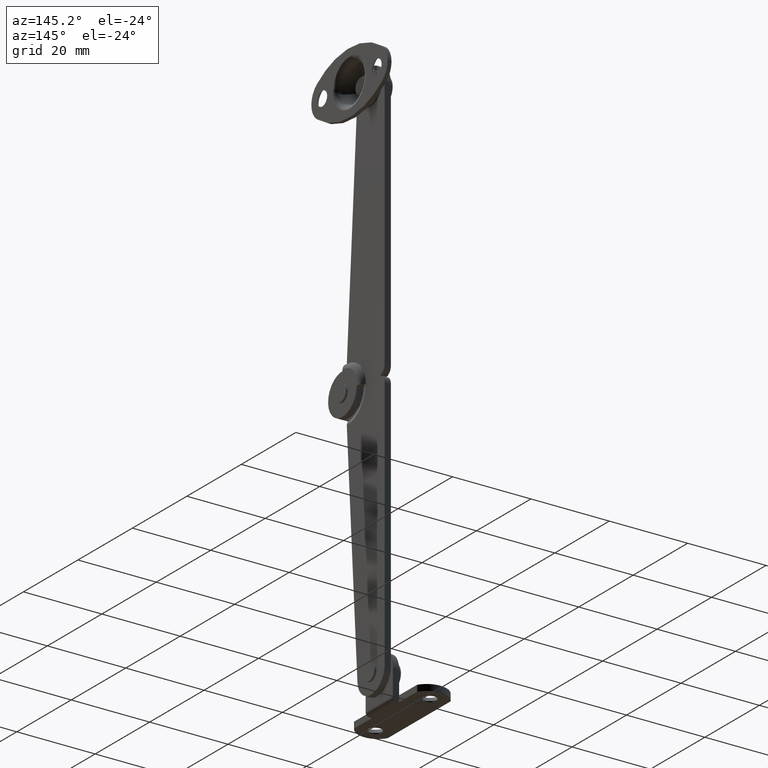
[diagram: clean part render]
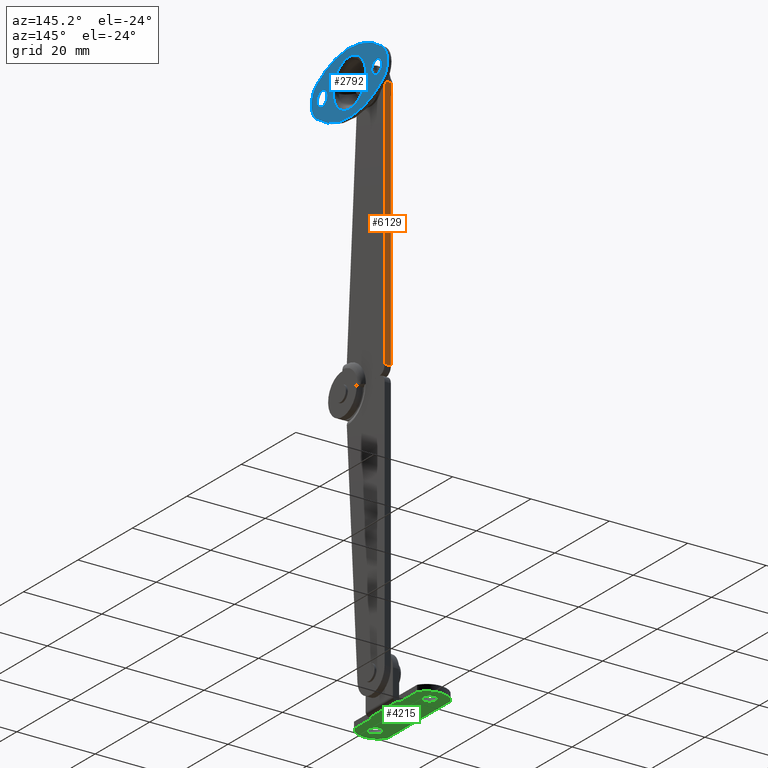
[diagram: same view with three faces highlighted in distinct colors, each labeled with its STEP entity id]
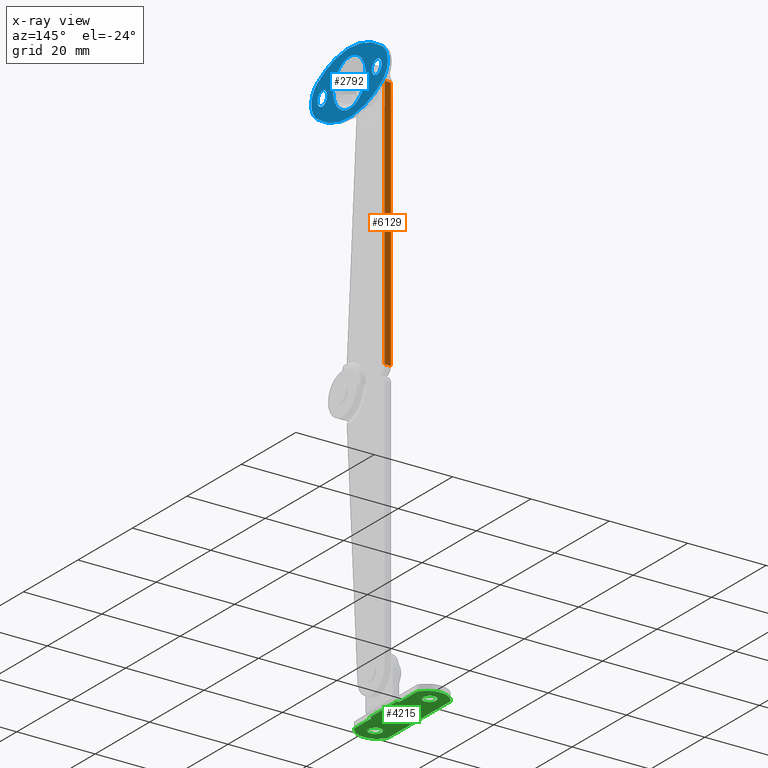
[diagram: x-ray of the same camera — body ghosted, the three highlighted faces saturated]
A machine part, auxiliary view with three faces highlighted in distinct colors.
The next image is the same camera in x-ray (body ghosted, the three faces saturated) — at least one of them is partly hidden behind the body in this view.
Their STEP definitions:

[orange] entity #6129 — the highlighted face is a freeform B-spline surface patch.
#5928=CARTESIAN_POINT('',(4.149994000000055,14.0,2.0));
#5929=VERTEX_POINT('',#5928);
#5941=CARTESIAN_POINT('',(5.750000000000150,14.0,2.0));
#5942=VERTEX_POINT('',#5941);
#5943=CARTESIAN_POINT('',(4.149994000000055,14.0,2.0));
#5944=CARTESIAN_POINT('',(5.750000000000150,14.0,2.0));
#5945=QUASI_UNIFORM_CURVE('',1,(#5943,#5944),.UNSPECIFIED.,.F.,.U.);
#5946=EDGE_CURVE('',#5929,#5942,#5945,.T.);
#6044=CARTESIAN_POINT('',(4.149994000000055,14.0,67.000029999999995));
#6045=VERTEX_POINT('',#6044);
#6046=CARTESIAN_POINT('',(5.750000000000150,14.0,67.000029999999995));
#6047=VERTEX_POINT('',#6046);
#6048=CARTESIAN_POINT('',(4.149994000000055,14.0,67.000029999999995));
#6049=CARTESIAN_POINT('',(5.750000000000150,14.0,67.000029999999995));
#6050=QUASI_UNIFORM_CURVE('',1,(#6048,#6049),.UNSPECIFIED.,.F.,.U.);
#6051=EDGE_CURVE('',#6045,#6047,#6050,.T.);
#6110=CARTESIAN_POINT('',(4.070073583243480,14.0,70.246781982691118));
#6111=CARTESIAN_POINT('',(4.070073583243480,14.0,-1.246753144982219));
#6112=CARTESIAN_POINT('',(5.829920345230884,14.0,70.246781982691118));
#6113=CARTESIAN_POINT('',(5.829920345230884,14.0,-1.246753144982219));
#6114=B_SPLINE_SURFACE_WITH_KNOTS('',1,1,((#6110,#6112),(#6111,#6113)),.UNSPECIFIED.,.F.,.F.,.U.,(2,2),(2,2),(0.0,71.493535127673340),(0.041708272366598,0.958291690380499),.UNSPECIFIED.);
#6115=CARTESIAN_POINT('',(5.750000000000150,14.0,67.000029999999995));
#6116=CARTESIAN_POINT('',(5.750000000000150,14.0,2.0));
#6117=QUASI_UNIFORM_CURVE('',1,(#6115,#6116),.UNSPECIFIED.,.F.,.U.);
#6118=EDGE_CURVE('',#6047,#5942,#6117,.T.);
#6119=ORIENTED_EDGE('',*,*,#6118,.T.);
#6120=ORIENTED_EDGE('',*,*,#5946,.F.);
#6121=CARTESIAN_POINT('',(4.149994000000055,14.0,2.0));
#6122=CARTESIAN_POINT('',(4.149994000000055,14.0,67.000029999999995));
#6123=QUASI_UNIFORM_CURVE('',1,(#6121,#6122),.UNSPECIFIED.,.F.,.U.);
#6124=EDGE_CURVE('',#5929,#6045,#6123,.T.);
#6125=ORIENTED_EDGE('',*,*,#6124,.T.);
#6126=ORIENTED_EDGE('',*,*,#6051,.T.);
#6127=EDGE_LOOP('',(#6119,#6120,#6125,#6126));
#6128=FACE_OUTER_BOUND('',#6127,.T.);
#6129=ADVANCED_FACE('',(#6128),#6114,.F.);

[blue] entity #2792 — the highlighted face is a freeform B-spline surface patch.
#1293=CARTESIAN_POINT('',(9.649994451055704,-2.239037304784775,65.694357113725545));
#1294=VERTEX_POINT('',#1293);
#1300=CARTESIAN_POINT('',(9.649994000000000,-1.0,65.200030000000012));
#1301=VERTEX_POINT('',#1300);
#1302=CARTESIAN_POINT('',(9.649994000000000,-1.0,65.200030000000012));
#1303=CARTESIAN_POINT('',(9.649994093302057,-1.256298084949666,65.199660623900812));
#1304=CARTESIAN_POINT('',(9.649994259002963,-1.711473907100474,65.299080119562205));
#1305=CARTESIAN_POINT('',(9.649994398451641,-2.094535352665974,65.557087586976436));
#1306=CARTESIAN_POINT('',(9.649994451055704,-2.239037304784775,65.694357113725545));
#1307=B_SPLINE_CURVE_WITH_KNOTS('',3,(#1302,#1303,#1304,#1305,#1306),.UNSPECIFIED.,.F.,.U.,(4,1,4),(0.000000084990069,0.768709457459307,1.366624335968727),.UNSPECIFIED.);
#1308=EDGE_CURVE('',#1301,#1294,#1307,.T.);
#1310=CARTESIAN_POINT('',(9.649994000000000,0.799999999996373,67.000026386603949));
#1311=VERTEX_POINT('',#1310);
#1312=CARTESIAN_POINT('',(9.649994000000000,0.799999999996373,67.000026386603949));
#1313=CARTESIAN_POINT('',(9.649994000000001,0.800414382369211,66.734875818377745));
#1314=CARTESIAN_POINT('',(9.649994000000021,0.703883556060165,66.308186642330710));
#1315=CARTESIAN_POINT('',(9.649993999999975,0.403928574066239,65.847343575582656));
#1316=CARTESIAN_POINT('',(9.649993999999998,0.103847748615253,65.561683830306535));
#1317=CARTESIAN_POINT('',(9.649994000000035,-0.337592026286505,65.289459060552844));
#1318=CARTESIAN_POINT('',(9.649993999999969,-0.734848716565953,65.199660955167360));
#1319=CARTESIAN_POINT('',(9.649994000000000,-1.0,65.200030000000012));
#1320=B_SPLINE_CURVE_WITH_KNOTS('',3,(#1312,#1313,#1314,#1315,#1316,#1317,#1318,#1319),.UNSPECIFIED.,.F.,.U.,(4,1,1,1,1,4),(0.000000345596898,0.795239765337936,1.281213680918837,1.634612673123135,2.032262881441498,2.827502303247388),.UNSPECIFIED.);
#1321=EDGE_CURVE('',#1311,#1301,#1320,.T.);
#1323=CARTESIAN_POINT('',(9.649994000000000,-1.0,68.800029999999992));
#1324=VERTEX_POINT('',#1323);
#1325=CARTESIAN_POINT('',(9.649994000000000,-1.0,68.800029999999992));
#1326=CARTESIAN_POINT('',(9.649994000000001,-0.734853882879192,68.800414078628833));
#1327=CARTESIAN_POINT('',(9.649994000000003,-0.249266821802632,68.690723412734101));
#1328=CARTESIAN_POINT('',(9.649994000000021,0.272700384364900,68.313433039890157));
#1329=CARTESIAN_POINT('',(9.649993999999984,0.555403358403742,67.931947877280010));
#1330=CARTESIAN_POINT('',(9.649993999999992,0.746267825684394,67.515360277613993));
#1331=CARTESIAN_POINT('',(9.649994000000087,0.800136375315735,67.206215401993603));
#1332=CARTESIAN_POINT('',(9.649994000000000,0.799999999996373,67.000026386603949));
#1333=B_SPLINE_CURVE_WITH_KNOTS('',3,(#1325,#1326,#1327,#1328,#1329,#1330,#1331,#1332),.UNSPECIFIED.,.F.,.U.,(4,1,1,1,1,4),(0.000000340656648,0.795240907083909,1.457882933283586,1.899716372774283,2.208993927122475,2.827506376488556),.UNSPECIFIED.);
#1334=EDGE_CURVE('',#1324,#1311,#1333,.T.);
#1336=CARTESIAN_POINT('',(9.649993554595177,-2.374401177565089,68.162366531939824));
#1337=VERTEX_POINT('',#1336);
#1338=CARTESIAN_POINT('',(9.649993554595177,-2.374401177565089,68.162366531939824));
#1339=CARTESIAN_POINT('',(9.649993612436207,-2.195919139567455,68.374236489262870));
#1340=CARTESIAN_POINT('',(9.649993751955897,-1.765398291226736,68.692110361589869));
#1341=CARTESIAN_POINT('',(9.649993920795298,-1.244404735133351,68.800331798949657));
#1342=CARTESIAN_POINT('',(9.649994000000000,-1.0,68.800029999999992));
#1343=B_SPLINE_CURVE_WITH_KNOTS('',3,(#1338,#1339,#1340,#1341,#1342),.UNSPECIFIED.,.F.,.U.,(4,1,4),(0.000000100120829,0.830796135116918,1.563891518724855),.UNSPECIFIED.);
#1344=EDGE_CURVE('',#1337,#1324,#1343,.T.);
#1379=CARTESIAN_POINT('',(9.649994000000000,-2.799999999996373,67.000033613396042));
#1380=VERTEX_POINT('',#1379);
#1381=CARTESIAN_POINT('',(9.649994000000000,-2.799999999996373,67.000033613396042));
#1382=CARTESIAN_POINT('',(9.649993914246483,-2.800208916386569,67.223817070721253));
#1383=CARTESIAN_POINT('',(9.649993752910925,-2.720363220080396,67.644839968122554));
#1384=CARTESIAN_POINT('',(9.649993612341973,-2.501992179032066,68.011670075757479));
#1385=CARTESIAN_POINT('',(9.649993554595177,-2.374401177565089,68.162366531939824));
#1386=B_SPLINE_CURVE_WITH_KNOTS('',3,(#1381,#1382,#1383,#1384,#1385),.UNSPECIFIED.,.F.,.U.,(4,1,4),(0.000000057585138,0.671274050167085,1.263612655268978),.UNSPECIFIED.);
#1387=EDGE_CURVE('',#1380,#1337,#1386,.T.);
#1389=CARTESIAN_POINT('',(9.649994451055704,-2.239037304784775,65.694357113725545));
#1390=CARTESIAN_POINT('',(9.649994396815503,-2.404758980099174,65.851367108114886));
#1391=CARTESIAN_POINT('',(9.649994257486902,-2.693087091308471,66.254683529306249));
#1392=CARTESIAN_POINT('',(9.649994089383382,-2.800373724412756,66.741294678245737));
#1393=CARTESIAN_POINT('',(9.649994000000000,-2.799999999996373,67.000033613396042));
#1394=B_SPLINE_CURVE_WITH_KNOTS('',3,(#1389,#1390,#1391,#1392,#1393),.UNSPECIFIED.,.F.,.U.,(4,1,4),(0.000000093078736,0.684812541278884,1.460882790438908),.UNSPECIFIED.);
#1395=EDGE_CURVE('',#1294,#1380,#1394,.T.);
#1485=CARTESIAN_POINT('',(9.649994451055704,17.760962695215230,65.694357113725545));
#1486=VERTEX_POINT('',#1485);
#1492=CARTESIAN_POINT('',(9.649994000000000,19.0,65.200030000000012));
#1493=VERTEX_POINT('',#1492);
#1494=CARTESIAN_POINT('',(9.649994000000000,19.0,65.200030000000012));
#1495=CARTESIAN_POINT('',(9.649994077743370,18.786441163693379,65.199865926290471));
#1496=CARTESIAN_POINT('',(9.649994243528212,18.331034854426299,65.282081073363784));
#1497=CARTESIAN_POINT('',(9.649994387210603,17.936343377775600,65.527558268005578));
#1498=CARTESIAN_POINT('',(9.649994451055704,17.760962695215230,65.694357113725545));
#1499=B_SPLINE_CURVE_WITH_KNOTS('',3,(#1494,#1495,#1496,#1497,#1498),.UNSPECIFIED.,.F.,.U.,(4,1,4),(0.000000084988176,0.640630727484481,1.366624335968762),.UNSPECIFIED.);
#1500=EDGE_CURVE('',#1493,#1486,#1499,.T.);
#1502=CARTESIAN_POINT('',(9.649994000000000,20.799999999996380,67.000026386603949));
#1503=VERTEX_POINT('',#1502);
#1504=CARTESIAN_POINT('',(9.649994000000000,20.799999999996380,67.000026386603949));
#1505=CARTESIAN_POINT('',(9.649993999999971,20.800401698574909,66.734890090380446));
#1506=CARTESIAN_POINT('',(9.649994000000056,20.697253330268321,66.278711407232024));
#1507=CARTESIAN_POINT('',(9.649993999999987,20.309117846460850,65.712956178023902));
#1508=CARTESIAN_POINT('',(9.649993999999957,19.750735939879629,65.309326788825501));
#1509=CARTESIAN_POINT('',(9.649994000000019,19.265144538212660,65.199646620830421));
#1510=CARTESIAN_POINT('',(9.649994000000000,19.0,65.200030000000012));
#1511=B_SPLINE_CURVE_WITH_KNOTS('',3,(#1504,#1505,#1506,#1507,#1508,#1509,#1510),.UNSPECIFIED.,.F.,.U.,(4,1,1,1,4),(0.000000345598685,0.795239765339662,1.369621816668202,2.032262881441540,2.827502303247411),.UNSPECIFIED.);
#1512=EDGE_CURVE('',#1503,#1493,#1511,.T.);
#1514=CARTESIAN_POINT('',(9.649994000000000,19.0,68.800029999999992));
#1515=VERTEX_POINT('',#1514);
#1516=CARTESIAN_POINT('',(9.649994000000000,19.0,68.800029999999992));
#1517=CARTESIAN_POINT('',(9.649994000000008,19.176702584370389,68.800063348140696));
#1518=CARTESIAN_POINT('',(9.649993999999978,19.574372426753769,68.741145547526799));
#1519=CARTESIAN_POINT('',(9.649994000000044,20.039623481263622,68.499757766064988));
#1520=CARTESIAN_POINT('',(9.649993999999991,20.382430089339501,68.173078120545583));
#1521=CARTESIAN_POINT('',(9.649993999999948,20.692882103396300,67.721161177934235));
#1522=CARTESIAN_POINT('',(9.649994000000074,20.800554131045391,67.294682843714853));
#1523=CARTESIAN_POINT('',(9.649994000000000,20.799999999996380,67.000026386603949));
#1524=B_SPLINE_CURVE_WITH_KNOTS('',3,(#1516,#1517,#1518,#1519,#1520,#1521,#1522,#1523),.UNSPECIFIED.,.F.,.U.,(4,1,1,1,1,4),(0.000000340657242,0.530151574952296,1.192891687106941,1.546291194766596,1.943904592462794,2.827506376488596),.UNSPECIFIED.);
#1525=EDGE_CURVE('',#1515,#1503,#1524,.T.);
#1527=CARTESIAN_POINT('',(9.649993554595177,17.625598822434910,68.162366531939810));
#1528=VERTEX_POINT('',#1527);
#1529=CARTESIAN_POINT('',(9.649993554595177,17.625598822434910,68.162366531939810));
#1530=CARTESIAN_POINT('',(9.649993605679878,17.783232693879071,68.349128830947876));
#1531=CARTESIAN_POINT('',(9.649993741449968,18.202183132001469,68.677188511200569));
#1532=CARTESIAN_POINT('',(9.649993910232753,18.723002080501630,68.800510863590148));
#1533=CARTESIAN_POINT('',(9.649994000000000,19.0,68.800029999999992));
#1534=B_SPLINE_CURVE_WITH_KNOTS('',3,(#1529,#1530,#1531,#1532,#1533),.UNSPECIFIED.,.F.,.U.,(4,1,4),(0.000000100121450,0.733095483797581,1.563891518724863),.UNSPECIFIED.);
#1535=EDGE_CURVE('',#1528,#1515,#1534,.T.);
#1570=CARTESIAN_POINT('',(9.649994000000000,17.200000000003630,67.000033613396042));
#1571=VERTEX_POINT('',#1570);
#1572=CARTESIAN_POINT('',(9.649994000000000,17.200000000003630,67.000033613396042));
#1573=CARTESIAN_POINT('',(9.649993924334217,17.199874407678081,67.197491944065362));
#1574=CARTESIAN_POINT('',(9.649993762970118,17.270054076239781,67.618589454449875));
#1575=CARTESIAN_POINT('',(9.649993620018332,17.480916593404501,67.991637789154623));
#1576=CARTESIAN_POINT('',(9.649993554595177,17.625598822434910,68.162366531939810));
#1577=B_SPLINE_CURVE_WITH_KNOTS('',3,(#1572,#1573,#1574,#1575,#1576),.UNSPECIFIED.,.F.,.U.,(4,1,4),(0.000000057587238,0.592338662387954,1.263612655268946),.UNSPECIFIED.);
#1578=EDGE_CURVE('',#1571,#1528,#1577,.T.);
#1580=CARTESIAN_POINT('',(9.649994451055704,17.760962695215230,65.694357113725545));
#1581=CARTESIAN_POINT('',(9.649994396821738,17.595215313404729,65.851349073716094));
#1582=CARTESIAN_POINT('',(9.649994257477070,17.306956610303541,66.254711894712671));
#1583=CARTESIAN_POINT('',(9.649994089386851,17.199609116564311,66.741284677093475));
#1584=CARTESIAN_POINT('',(9.649994000000000,17.200000000003630,67.000033613396042));
#1585=B_SPLINE_CURVE_WITH_KNOTS('',3,(#1580,#1581,#1582,#1583,#1584),.UNSPECIFIED.,.F.,.U.,(4,1,4),(0.000000093078407,0.684812541279019,1.460882790438911),.UNSPECIFIED.);
#1586=EDGE_CURVE('',#1486,#1571,#1585,.T.);
#1861=CARTESIAN_POINT('',(9.649994000000108,3.136375976985022,68.272075974731393));
#1862=VERTEX_POINT('',#1861);
#1872=CARTESIAN_POINT('',(9.649994000000110,9.0,61.000014362757327));
#1873=VERTEX_POINT('',#1872);
#1874=CARTESIAN_POINT('',(9.649994000000110,9.0,61.000014362757327));
#1875=CARTESIAN_POINT('',(9.649994000000101,8.609666033851966,60.999963915993057));
#1876=CARTESIAN_POINT('',(9.649994000000129,7.856898252964660,61.073774177375050));
#1877=CARTESIAN_POINT('',(9.649994000000104,6.567431565047627,61.452338306088663));
#1878=CARTESIAN_POINT('',(9.649994000000108,5.322233093092903,62.170007067396547));
#1879=CARTESIAN_POINT('',(9.649994000000113,4.193099609499307,63.304278319418842));
#1880=CARTESIAN_POINT('',(9.649994000000108,3.422323229111600,64.613065093003883));
#1881=CARTESIAN_POINT('',(9.649994000000111,2.942748407027567,66.317350125228558));
#1882=CARTESIAN_POINT('',(9.649994000000110,2.982083396451556,67.563674280196381));
#1883=CARTESIAN_POINT('',(9.649994000000108,3.136375976985022,68.272075974731393));
#1884=B_SPLINE_CURVE_WITH_KNOTS('',3,(#1874,#1875,#1876,#1877,#1878,#1879,#1880,#1881,#1882,#1883),.UNSPECIFIED.,.F.,.U.,(4,1,1,1,1,1,1,4),(0.000000245089083,1.171003277671836,2.258433945535783,4.015008304481801,5.436919954071710,7.026219321892260,8.531885843549242,10.706662360019990),.UNSPECIFIED.);
#1885=EDGE_CURVE('',#1873,#1862,#1884,.T.);
#1887=CARTESIAN_POINT('',(9.649994000000078,10.605318162429359,72.781305234925838));
#1888=VERTEX_POINT('',#1887);
#1889=CARTESIAN_POINT('',(9.649994000000078,10.605318162429359,72.781305234925838));
#1890=CARTESIAN_POINT('',(9.649994000000099,11.297072524835979,72.589857098183799));
#1891=CARTESIAN_POINT('',(9.649994000000033,12.404534030480621,72.053329611328280));
#1892=CARTESIAN_POINT('',(9.649994000000142,13.740224080991879,70.801527004857590));
#1893=CARTESIAN_POINT('',(9.649994000000074,14.490451513684160,69.558518277163913));
#1894=CARTESIAN_POINT('',(9.649994000000012,14.898994442244970,68.271271829619664));
#1895=CARTESIAN_POINT('',(9.649994000000213,15.022951284448970,67.264491122230339));
#1896=CARTESIAN_POINT('',(9.649994000000028,14.971595550254380,66.141762733299814));
#1897=CARTESIAN_POINT('',(9.649994000000119,14.739844692042020,65.129847874858314));
#1898=CARTESIAN_POINT('',(9.649994000000156,14.194786545442430,63.894914783609487));
#1899=CARTESIAN_POINT('',(9.649993999999991,13.409637977638271,62.840491053810709));
#1900=CARTESIAN_POINT('',(9.649994000000335,12.343742662872311,61.971636481981797));
#1901=CARTESIAN_POINT('',(9.649993999999762,11.368527354530629,61.454234392848022));
#1902=CARTESIAN_POINT('',(9.649994000000577,10.255872515071591,61.092953747844589));
#1903=CARTESIAN_POINT('',(9.649993999999692,9.470974073598475,60.999896110533193));
#1904=CARTESIAN_POINT('',(9.649994000000110,9.0,61.000014362757327));
#1905=B_SPLINE_CURVE_WITH_KNOTS('',3,(#1889,#1890,#1891,#1892,#1893,#1894,#1895,#1896,#1897,#1898,#1899,#1900,#1901,#1902,#1903,#1904),.UNSPECIFIED.,.F.,.U.,(4,1,1,1,1,1,1,1,1,1,1,1,1,4),(0.000000489455335,2.153018411291860,3.633302781003689,5.450000731887766,6.459273881331582,7.670387090471490,8.477787418457710,9.823318680504482,10.765346778150310,12.514734577114130,13.725859515860041,14.869681849598351,15.811691561109109,17.224580087048199),.UNSPECIFIED.);
#1906=EDGE_CURVE('',#1888,#1873,#1905,.T.);
#1954=CARTESIAN_POINT('',(9.649994000000110,9.0,73.000045637242678));
#1955=VERTEX_POINT('',#1954);
#1956=CARTESIAN_POINT('',(9.649994000000110,9.0,73.000045637242678));
#1957=CARTESIAN_POINT('',(9.649994000000122,9.541714192960235,73.000137048333485));
#1958=CARTESIAN_POINT('',(9.649994000000103,10.083382077342559,72.926370396784577));
#1959=CARTESIAN_POINT('',(9.649994000000078,10.605318162429359,72.781305234925838));
#1960=B_SPLINE_CURVE_WITH_KNOTS('',3,(#1956,#1957,#1958,#1959),.UNSPECIFIED.,.F.,.U.,(4,4),(5.034593E-009,1.625134716293329),.UNSPECIFIED.);
#1961=EDGE_CURVE('',#1955,#1888,#1960,.T.);
#1963=CARTESIAN_POINT('',(9.649994000000108,3.136375976985022,68.272075974731393));
#1964=CARTESIAN_POINT('',(9.649994000000094,3.266451172408891,68.873174695616768));
#1965=CARTESIAN_POINT('',(9.649994000000124,3.621430631441156,69.794121433911656));
#1966=CARTESIAN_POINT('',(9.649994000000117,4.354684378896154,70.840286673246354));
#1967=CARTESIAN_POINT('',(9.649994000000119,5.143679458517179,71.645052012502973));
#1968=CARTESIAN_POINT('',(9.649994000000113,6.109929943415776,72.312304162901938));
#1969=CARTESIAN_POINT('',(9.649994000000104,7.452091081945932,72.859298907696115));
#1970=CARTESIAN_POINT('',(9.649994000000140,8.427415972008365,73.000274947265382));
#1971=CARTESIAN_POINT('',(9.649994000000110,9.0,73.000045637242678));
#1972=B_SPLINE_CURVE_WITH_KNOTS('',3,(#1963,#1964,#1965,#1966,#1967,#1968,#1969,#1970,#1971),.UNSPECIFIED.,.F.,.U.,(4,1,1,1,1,1,4),(0.000000123786517,1.844911224844770,2.926437859339236,3.817080720363979,5.216631494164000,6.425391302564513,8.143067522420745),.UNSPECIFIED.);
#1973=EDGE_CURVE('',#1862,#1955,#1972,.T.);
#2521=CARTESIAN_POINT('',(9.649994000000110,21.000004105534899,71.000018170845408));
#2522=VERTEX_POINT('',#2521);
#2523=CARTESIAN_POINT('',(9.649994000000110,-3.000003686655965,71.000018485002698));
#2524=VERTEX_POINT('',#2523);
#2525=CARTESIAN_POINT('',(9.649994000000110,21.000004105534899,71.000018170845408));
#2526=CARTESIAN_POINT('',(9.649994000000101,19.606001622478381,72.046139898922689));
#2527=CARTESIAN_POINT('',(9.649994000000135,17.308211481104710,73.338970790858212));
#2528=CARTESIAN_POINT('',(9.649994000000080,13.797254136939729,74.489477680095646));
#2529=CARTESIAN_POINT('',(9.649994000000120,10.417590043490030,75.073106162316336));
#2530=CARTESIAN_POINT('',(9.649994000000126,6.776470699495208,74.999944141021970));
#2531=CARTESIAN_POINT('',(9.649994000000083,3.488747073172148,74.294923879892082));
#2532=CARTESIAN_POINT('',(9.649994000000152,0.273770950415316,73.114453987845877));
#2533=CARTESIAN_POINT('',(9.649994000000051,-1.766816290358881,71.925368963532108));
#2534=CARTESIAN_POINT('',(9.649994000000110,-3.000003686655965,71.000018485002698));
#2535=B_SPLINE_CURVE_WITH_KNOTS('',3,(#2525,#2526,#2527,#2528,#2529,#2530,#2531,#2532,#2533,#2534),.UNSPECIFIED.,.F.,.U.,(4,1,1,1,1,1,1,4),(0.000000048449976,5.228463803631286,7.842709766473440,11.060233049703699,15.484287527659500,18.701835276592451,21.114989854946430,25.740166943320830),.UNSPECIFIED.);
#2536=EDGE_CURVE('',#2522,#2524,#2535,.T.);
#2582=CARTESIAN_POINT('',(9.649994000000110,21.000000295162049,63.000032721371902));
#2583=VERTEX_POINT('',#2582);
#2584=CARTESIAN_POINT('',(9.649994000000110,21.000000295162049,63.000032721371902));
#2585=CARTESIAN_POINT('',(9.649994000000092,21.251154371928251,63.188357881167718));
#2586=CARTESIAN_POINT('',(9.649994000000177,21.735772994078982,63.628852382171132));
#2587=CARTESIAN_POINT('',(9.649994000000023,22.270331946299990,64.350520155255978));
#2588=CARTESIAN_POINT('',(9.649994000000152,22.703483984053459,65.216780217272444));
#2589=CARTESIAN_POINT('',(9.649994000000115,22.941376703953871,66.059013162151430));
#2590=CARTESIAN_POINT('',(9.649994000000062,23.025423516828180,67.023830247763797));
#2591=CARTESIAN_POINT('',(9.649994000000223,22.943270519853080,67.966871295907879));
#2592=CARTESIAN_POINT('',(9.649993999999929,22.595018730077811,69.105092560633182));
#2593=CARTESIAN_POINT('',(9.649994000000230,21.943935458053559,70.165701571552589));
#2594=CARTESIAN_POINT('',(9.649994000000101,21.309104586485351,70.768234190709236));
#2595=CARTESIAN_POINT('',(9.649994000000110,21.000004105534899,71.000018170845408));
#2596=B_SPLINE_CURVE_WITH_KNOTS('',3,(#2584,#2585,#2586,#2587,#2588,#2589,#2590,#2591,#2592,#2593,#2594,#2595),.UNSPECIFIED.,.F.,.U.,(4,1,1,1,1,1,1,1,1,4),(0.000000283874277,0.941756870447453,1.956019835069806,2.680493443352812,3.839642157791069,4.564122549599736,5.578253375811129,6.664978479389026,8.113924067409426,9.273014752692442),.UNSPECIFIED.);
#2597=EDGE_CURVE('',#2583,#2522,#2596,.T.);
#2639=CARTESIAN_POINT('',(9.649994000000110,-3.000000015909705,63.000032511932403));
#2640=VERTEX_POINT('',#2639);
#2641=CARTESIAN_POINT('',(9.649994000000110,-3.000000015909705,63.000032511932403));
#2642=CARTESIAN_POINT('',(9.649994000000092,-1.605997751023824,61.953897591322423));
#2643=CARTESIAN_POINT('',(9.649994000000152,0.691800802045827,60.661138051571342));
#2644=CARTESIAN_POINT('',(9.649994000000058,4.458080552774334,59.426777289652222));
#2645=CARTESIAN_POINT('',(9.649994000000168,7.721724107517023,58.930694067893683));
#2646=CARTESIAN_POINT('',(9.649994000000095,11.082639255447409,59.032288215943893));
#2647=CARTESIAN_POINT('',(9.649994000000127,13.991012173575500,59.564494798660597));
#2648=CARTESIAN_POINT('',(9.649994000000097,17.369813477313471,60.690608280784318));
#2649=CARTESIAN_POINT('',(9.649994000000104,19.659603674296111,61.994164961118770));
#2650=CARTESIAN_POINT('',(9.649994000000110,21.000000295162049,63.000032721371902));
#2651=B_SPLINE_CURVE_WITH_KNOTS('',3,(#2641,#2642,#2643,#2644,#2645,#2646,#2647,#2648,#2649,#2650),.UNSPECIFIED.,.F.,.U.,(4,1,1,1,1,1,1,4),(0.000000048470827,5.228461091149526,7.842705697700037,11.864645613613570,15.082092491760569,17.897447020660032,20.712783386384249,25.740153589354961),.UNSPECIFIED.);
#2652=EDGE_CURVE('',#2640,#2583,#2651,.T.);
#2692=CARTESIAN_POINT('',(9.649994000000110,-3.000003686655965,71.000018485002698));
#2693=CARTESIAN_POINT('',(9.649994000000110,-3.270483891115501,70.797204984290957));
#2694=CARTESIAN_POINT('',(9.649994000000103,-3.787938948504215,70.319991943571111));
#2695=CARTESIAN_POINT('',(9.649994000000126,-4.377221507229255,69.487155831588737));
#2696=CARTESIAN_POINT('',(9.649994000000092,-4.805500277867499,68.509601035787156));
#2697=CARTESIAN_POINT('',(9.649994000000129,-5.045670775958975,67.342795342147653));
#2698=CARTESIAN_POINT('',(9.649994000000051,-4.980614782306598,66.222206106802787));
#2699=CARTESIAN_POINT('',(9.649994000000103,-4.684295033635258,65.173723576772019));
#2700=CARTESIAN_POINT('',(9.649994000000241,-4.149226587475864,64.083325777954272));
#2701=CARTESIAN_POINT('',(9.649993999999909,-3.483290317067980,63.361933687501129));
#2702=CARTESIAN_POINT('',(9.649994000000110,-3.000000015909705,63.000032511932403));
#2703=B_SPLINE_CURVE_WITH_KNOTS('',3,(#2692,#2693,#2694,#2695,#2696,#2697,#2698,#2699,#2700,#2701,#2702),.UNSPECIFIED.,.F.,.U.,(4,1,1,1,1,1,1,1,4),(0.000000283928129,1.014223614566017,2.100911204105307,3.042727969645987,4.201842481066900,5.650726894339682,6.375178836503205,7.461885251918522,9.273015369800733),.UNSPECIFIED.);
#2704=EDGE_CURVE('',#2524,#2640,#2703,.T.);
#2759=CARTESIAN_POINT('',(9.649994000000110,-6.398537637158274,75.799103255915028));
#2760=CARTESIAN_POINT('',(9.649994000000110,24.398603185556169,75.799103255915028));
#2761=CARTESIAN_POINT('',(9.649994000000110,-6.398537637158274,58.200816145868593));
#2762=CARTESIAN_POINT('',(9.649994000000110,24.398603185556169,58.200816145868593));
#2763=B_SPLINE_SURFACE_WITH_KNOTS('',1,1,((#2759,#2761),(#2760,#2762)),.UNSPECIFIED.,.F.,.F.,.U.,(2,2),(2,2),(0.0,30.797140822714439),(0.0,17.598287110046439),.UNSPECIFIED.);
#2764=ORIENTED_EDGE('',*,*,#2704,.T.);
#2765=ORIENTED_EDGE('',*,*,#2652,.T.);
#2766=ORIENTED_EDGE('',*,*,#2597,.T.);
#2767=ORIENTED_EDGE('',*,*,#2536,.T.);
#2768=EDGE_LOOP('',(#2764,#2765,#2766,#2767));
#2769=FACE_OUTER_BOUND('',#2768,.T.);
#2770=ORIENTED_EDGE('',*,*,#1885,.T.);
#2771=ORIENTED_EDGE('',*,*,#1973,.T.);
#2772=ORIENTED_EDGE('',*,*,#1961,.T.);
#2773=ORIENTED_EDGE('',*,*,#1906,.T.);
#2774=EDGE_LOOP('',(#2770,#2771,#2772,#2773));
#2775=FACE_BOUND('',#2774,.T.);
#2776=ORIENTED_EDGE('',*,*,#1525,.T.);
#2777=ORIENTED_EDGE('',*,*,#1512,.T.);
#2778=ORIENTED_EDGE('',*,*,#1500,.T.);
#2779=ORIENTED_EDGE('',*,*,#1586,.T.);
#2780=ORIENTED_EDGE('',*,*,#1578,.T.);
#2781=ORIENTED_EDGE('',*,*,#1535,.T.);
#2782=EDGE_LOOP('',(#2776,#2777,#2778,#2779,#2780,#2781));
#2783=FACE_BOUND('',#2782,.T.);
#2784=ORIENTED_EDGE('',*,*,#1334,.T.);
#2785=ORIENTED_EDGE('',*,*,#1321,.T.);
#2786=ORIENTED_EDGE('',*,*,#1308,.T.);
#2787=ORIENTED_EDGE('',*,*,#1395,.T.);
#2788=ORIENTED_EDGE('',*,*,#1387,.T.);
#2789=ORIENTED_EDGE('',*,*,#1344,.T.);
#2790=EDGE_LOOP('',(#2784,#2785,#2786,#2787,#2788,#2789));
#2791=FACE_BOUND('',#2790,.T.);
#2792=ADVANCED_FACE('',(#2769,#2775,#2783,#2791),#2763,.F.);

[green] entity #4215 — the highlighted face is a freeform B-spline surface patch.
#3068=CARTESIAN_POINT('',(-4.915481147613297,-2.259867392666124,-74.599976999999910));
#3069=VERTEX_POINT('',#3068);
#3075=CARTESIAN_POINT('',(-5.500005999999895,-1.0,-74.599976999999896));
#3076=VERTEX_POINT('',#3075);
#3077=CARTESIAN_POINT('',(-4.915481147613297,-2.259867392666124,-74.599976999999910));
#3078=CARTESIAN_POINT('',(-5.086726821433127,-2.115407090062379,-74.599976999999896));
#3079=CARTESIAN_POINT('',(-5.387339755077012,-1.731273406151336,-74.599977000000095));
#3080=CARTESIAN_POINT('',(-5.500461870928144,-1.253933618283417,-74.599976999999882));
#3081=CARTESIAN_POINT('',(-5.500005999999895,-1.0,-74.599976999999896));
#3082=B_SPLINE_CURVE_WITH_KNOTS('',3,(#3077,#3078,#3079,#3080,#3081),.UNSPECIFIED.,.F.,.U.,(4,1,4),(0.000000119611054,0.672011127664677,1.433566883238983),.UNSPECIFIED.);
#3083=EDGE_CURVE('',#3069,#3076,#3082,.T.);
#3085=CARTESIAN_POINT('',(-3.850002143701895,0.649999999995494,-74.599976999999896));
#3086=VERTEX_POINT('',#3085);
#3087=CARTESIAN_POINT('',(-5.500005999999895,-1.0,-74.599976999999896));
#3088=CARTESIAN_POINT('',(-5.500096540010426,-0.824504927495290,-74.599976999999939));
#3089=CARTESIAN_POINT('',(-5.452161073842555,-0.527583691038509,-74.599976999999669));
#3090=CARTESIAN_POINT('',(-5.254222427032292,-0.095388290935794,-74.599977000000081));
#3091=CARTESIAN_POINT('',(-4.937450646521857,0.281317266079958,-74.599977000000152));
#3092=CARTESIAN_POINT('',(-4.443850746729992,0.577012924310874,-74.599976999999143));
#3093=CARTESIAN_POINT('',(-4.052512222684595,0.650172319968812,-74.599977000000024));
#3094=CARTESIAN_POINT('',(-3.850002143701895,0.649999999995494,-74.599976999999896));
#3095=B_SPLINE_CURVE_WITH_KNOTS('',3,(#3087,#3088,#3089,#3090,#3091,#3092,#3093,#3094),.UNSPECIFIED.,.F.,.U.,(4,1,1,1,1,4),(0.000000356279306,0.526470657193582,0.890978668959229,1.417418142825531,1.984412466626986,2.591881151729964),.UNSPECIFIED.);
#3096=EDGE_CURVE('',#3076,#3086,#3095,.T.);
#3098=CARTESIAN_POINT('',(-2.200005999999895,-1.0,-74.599976999999896));
#3099=VERTEX_POINT('',#3098);
#3100=CARTESIAN_POINT('',(-3.850002143701895,0.649999999995494,-74.599976999999896));
#3101=CARTESIAN_POINT('',(-3.647506225172289,0.650153909620931,-74.599976999999868));
#3102=CARTESIAN_POINT('',(-3.229076924057162,0.572073048526528,-74.599976999999811));
#3103=CARTESIAN_POINT('',(-2.729152598483500,0.255581733195900,-74.599977000000280));
#3104=CARTESIAN_POINT('',(-2.427070454633534,-0.131884276773977,-74.599976999999299));
#3105=CARTESIAN_POINT('',(-2.245674619891713,-0.541089522906816,-74.599977000000905));
#3106=CARTESIAN_POINT('',(-2.199912938172373,-0.824501399452546,-74.599976999998930));
#3107=CARTESIAN_POINT('',(-2.200005999999895,-1.0,-74.599976999999896));
#3108=B_SPLINE_CURVE_WITH_KNOTS('',3,(#3100,#3101,#3102,#3103,#3104,#3105,#3106,#3107),.UNSPECIFIED.,.F.,.U.,(4,1,1,1,1,4),(0.000000361543147,0.607468029780056,1.255493459995875,1.741410047913638,2.065407385826035,2.591876804674869),.UNSPECIFIED.);
#3109=EDGE_CURVE('',#3086,#3099,#3108,.T.);
#3111=CARTESIAN_POINT('',(-2.653138784126899,-2.135784174252351,-74.599976999999910));
#3112=VERTEX_POINT('',#3111);
#3113=CARTESIAN_POINT('',(-2.200005999999895,-1.0,-74.599976999999896));
#3114=CARTESIAN_POINT('',(-2.199919895198673,-1.182695392794943,-74.599976999999953));
#3115=CARTESIAN_POINT('',(-2.270037159685963,-1.600219130544500,-74.599976999999939));
#3116=CARTESIAN_POINT('',(-2.491194639171962,-1.965585559665340,-74.599976999999910));
#3117=CARTESIAN_POINT('',(-2.653138784126899,-2.135784174252351,-74.599976999999910));
#3118=B_SPLINE_CURVE_WITH_KNOTS('',3,(#3113,#3114,#3115,#3116,#3117),.UNSPECIFIED.,.F.,.U.,(4,1,4),(0.000000077919313,0.548088634569418,1.252738786484338),.UNSPECIFIED.);
#3119=EDGE_CURVE('',#3099,#3112,#3118,.T.);
#3151=CARTESIAN_POINT('',(-3.850009856297910,-2.649999999995494,-74.599976999999910));
#3152=VERTEX_POINT('',#3151);
#3153=CARTESIAN_POINT('',(-2.653138784126899,-2.135784174252351,-74.599976999999910));
#3154=CARTESIAN_POINT('',(-2.749137825691201,-2.236984432719616,-74.599976999999910));
#3155=CARTESIAN_POINT('',(-2.988766522265876,-2.432659665602473,-74.599976999999967));
#3156=CARTESIAN_POINT('',(-3.403628061533141,-2.610917947765740,-74.599976999999924));
#3157=CARTESIAN_POINT('',(-3.710521699529648,-2.650020887142067,-74.599976999999853));
#3158=CARTESIAN_POINT('',(-3.850009856297910,-2.649999999995494,-74.599976999999910));
#3159=B_SPLINE_CURVE_WITH_KNOTS('',3,(#3153,#3154,#3155,#3156,#3157,#3158),.UNSPECIFIED.,.F.,.U.,(4,1,1,4),(0.000000085321552,0.418486140712205,0.920658545406394,1.339143508192321),.UNSPECIFIED.);
#3160=EDGE_CURVE('',#3112,#3152,#3159,.T.);
#3162=CARTESIAN_POINT('',(-3.850009856297910,-2.649999999995494,-74.599976999999910));
#3163=CARTESIAN_POINT('',(-4.091398543411231,-2.650396586462149,-74.599976999999924));
#3164=CARTESIAN_POINT('',(-4.477121408272358,-2.563674139399346,-74.599976999999939));
#3165=CARTESIAN_POINT('',(-4.804946833105610,-2.353384385186920,-74.599976999999953));
#3166=CARTESIAN_POINT('',(-4.915481147613297,-2.259867392666124,-74.599976999999910));
#3167=B_SPLINE_CURVE_WITH_KNOTS('',3,(#3162,#3163,#3164,#3165,#3166),.UNSPECIFIED.,.F.,.U.,(4,1,4),(0.000000066437543,0.723934781667624,1.158311183531885),.UNSPECIFIED.);
#3168=EDGE_CURVE('',#3152,#3069,#3167,.T.);
#3212=CARTESIAN_POINT('',(-4.915481147613297,17.740132607333880,-74.599976999999910));
#3213=VERTEX_POINT('',#3212);
#3219=CARTESIAN_POINT('',(-5.500005999999895,19.0,-74.599976999999896));
#3220=VERTEX_POINT('',#3219);
#3221=CARTESIAN_POINT('',(-4.915481147613297,17.740132607333880,-74.599976999999910));
#3222=CARTESIAN_POINT('',(-5.063817134551580,17.865391366522370,-74.599976999999967));
#3223=CARTESIAN_POINT('',(-5.266902371851568,18.110685531786011,-74.599976999999896));
#3224=CARTESIAN_POINT('',(-5.457271108645903,18.552060619334981,-74.599976999999910));
#3225=CARTESIAN_POINT('',(-5.500080882632612,18.835731019303680,-74.599976999999910));
#3226=CARTESIAN_POINT('',(-5.500005999999895,19.0,-74.599976999999896));
#3227=B_SPLINE_CURVE_WITH_KNOTS('',3,(#3221,#3222,#3223,#3224,#3225,#3226),.UNSPECIFIED.,.F.,.U.,(4,1,1,4),(0.000000119611083,0.582391951691505,0.940765481704321,1.433566883238986),.UNSPECIFIED.);
#3228=EDGE_CURVE('',#3213,#3220,#3227,.T.);
#3230=CARTESIAN_POINT('',(-3.850002143701895,20.649999999995490,-74.599976999999896));
#3231=VERTEX_POINT('',#3230);
#3232=CARTESIAN_POINT('',(-5.500005999999895,19.0,-74.599976999999896));
#3233=CARTESIAN_POINT('',(-5.500284200583609,19.229523844579219,-74.599976999999996));
#3234=CARTESIAN_POINT('',(-5.405592054917705,19.674785991080579,-74.599976999999825));
#3235=CARTESIAN_POINT('',(-5.049066853566957,20.181029128546552,-74.599976999999768));
#3236=CARTESIAN_POINT('',(-4.524609483377496,20.550384871830222,-74.599977000000194));
#3237=CARTESIAN_POINT('',(-4.106571437952233,20.650440346066961,-74.599976999999797));
#3238=CARTESIAN_POINT('',(-3.850002143701895,20.649999999995490,-74.599976999999896));
#3239=B_SPLINE_CURVE_WITH_KNOTS('',3,(#3232,#3233,#3234,#3235,#3236,#3237,#3238),.UNSPECIFIED.,.F.,.U.,(4,1,1,1,4),(0.000000356280326,0.688472065560720,1.336385949168220,1.822411057366298,2.591881151729941),.UNSPECIFIED.);
#3240=EDGE_CURVE('',#3220,#3231,#3239,.T.);
#3242=CARTESIAN_POINT('',(-2.200005999999895,19.0,-74.599976999999896));
#3243=VERTEX_POINT('',#3242);
#3244=CARTESIAN_POINT('',(-3.850002143701895,20.649999999995490,-74.599976999999896));
#3245=CARTESIAN_POINT('',(-3.593407922107541,20.650456747313662,-74.599976999999924));
#3246=CARTESIAN_POINT('',(-3.202430039037515,20.556802416432951,-74.599976999999882));
#3247=CARTESIAN_POINT('',(-2.716090008114698,20.231805108364910,-74.599976999999924));
#3248=CARTESIAN_POINT('',(-2.438001323365210,19.892993657117451,-74.599976999999825));
#3249=CARTESIAN_POINT('',(-2.245685318867334,19.458903712502199,-74.599977000000024));
#3250=CARTESIAN_POINT('',(-2.199911940092991,19.175497451712790,-74.599976999999498));
#3251=CARTESIAN_POINT('',(-2.200005999999895,19.0,-74.599976999999896));
#3252=B_SPLINE_CURVE_WITH_KNOTS('',3,(#3244,#3245,#3246,#3247,#3248,#3249,#3250,#3251),.UNSPECIFIED.,.F.,.U.,(4,1,1,1,1,4),(0.000000361542580,0.769469166345752,1.174461398330031,1.741410047913389,2.065407385825887,2.591876804674867),.UNSPECIFIED.);
#3253=EDGE_CURVE('',#3231,#3243,#3252,.T.);
#3255=CARTESIAN_POINT('',(-2.653138784126900,17.864215825747650,-74.599976999999896));
#3256=VERTEX_POINT('',#3255);
#3257=CARTESIAN_POINT('',(-2.200005999999895,19.0,-74.599976999999896));
#3258=CARTESIAN_POINT('',(-2.199956598276404,18.843407144993360,-74.599977000000095));
#3259=CARTESIAN_POINT('',(-2.259851659073017,18.425833380226361,-74.599976999999399));
#3260=CARTESIAN_POINT('',(-2.473000660826566,18.053231827312270,-74.599977000000251));
#3261=CARTESIAN_POINT('',(-2.653138784126900,17.864215825747650,-74.599976999999896));
#3262=B_SPLINE_CURVE_WITH_KNOTS('',3,(#3257,#3258,#3259,#3260,#3261),.UNSPECIFIED.,.F.,.U.,(4,1,4),(0.000000077920194,0.469791287723301,1.252738786484339),.UNSPECIFIED.);
#3263=EDGE_CURVE('',#3243,#3256,#3262,.T.);
#3357=CARTESIAN_POINT('',(-3.850009856297911,17.350000000004510,-74.599976999999896));
#3358=VERTEX_POINT('',#3357);
#3359=CARTESIAN_POINT('',(-2.653138784126900,17.864215825747650,-74.599976999999896));
#3360=CARTESIAN_POINT('',(-2.835274201601009,17.671520994117291,-74.599976999999953));
#3361=CARTESIAN_POINT('',(-3.222302232192368,17.424250183182810,-74.599976999999740));
#3362=CARTESIAN_POINT('',(-3.668676442586428,17.349923275712769,-74.599977000000067));
#3363=CARTESIAN_POINT('',(-3.850009856297911,17.350000000004510,-74.599976999999896));
#3364=B_SPLINE_CURVE_WITH_KNOTS('',3,(#3359,#3360,#3361,#3362,#3363),.UNSPECIFIED.,.F.,.U.,(4,1,4),(0.000000085321227,0.795112254154569,1.339143508192327),.UNSPECIFIED.);
#3365=EDGE_CURVE('',#3256,#3358,#3364,.T.);
#3367=CARTESIAN_POINT('',(-3.850009856297911,17.350000000004510,-74.599976999999896));
#3368=CARTESIAN_POINT('',(-4.031011405084212,17.349902525650219,-74.599976999999839));
#3369=CARTESIAN_POINT('',(-4.417030024565303,17.414179341275489,-74.599977000000095));
#3370=CARTESIAN_POINT('',(-4.758971309834585,17.607532165184509,-74.599976999999740));
#3371=CARTESIAN_POINT('',(-4.915481147613297,17.740132607333880,-74.599976999999910));
#3372=B_SPLINE_CURVE_WITH_KNOTS('',3,(#3367,#3368,#3369,#3370,#3371),.UNSPECIFIED.,.F.,.U.,(4,1,4),(0.000000066437512,0.542982243878654,1.158311183531890),.UNSPECIFIED.);
#3373=EDGE_CURVE('',#3358,#3213,#3372,.T.);
#3716=CARTESIAN_POINT('',(1.049988000000000,14.0,-74.599976999999896));
#3717=VERTEX_POINT('',#3716);
#3735=CARTESIAN_POINT('',(1.049988000000000,4.0,-74.599976999999896));
#3736=VERTEX_POINT('',#3735);
#3747=CARTESIAN_POINT('',(1.049988000000000,14.0,-74.599976999999896));
#3748=CARTESIAN_POINT('',(1.049988000000000,4.0,-74.599976999999896));
#3749=QUASI_UNIFORM_CURVE('',1,(#3747,#3748),.UNSPECIFIED.,.F.,.U.);
#3750=EDGE_CURVE('',#3717,#3736,#3749,.T.);
#3886=CARTESIAN_POINT('',(0.449997000000146,4.0,-74.599976999999896));
#3887=VERTEX_POINT('',#3886);
#3888=CARTESIAN_POINT('',(0.449997000000146,4.0,-74.599976999999896));
#3889=CARTESIAN_POINT('',(1.049988000000000,4.0,-74.599976999999896));
#3890=QUASI_UNIFORM_CURVE('',1,(#3888,#3889),.UNSPECIFIED.,.F.,.U.);
#3891=EDGE_CURVE('',#3887,#3736,#3890,.T.);
#3916=CARTESIAN_POINT('',(0.449997000000146,14.0,-74.599976999999896));
#3917=VERTEX_POINT('',#3916);
#3918=CARTESIAN_POINT('',(0.449997000000146,14.0,-74.599976999999896));
#3919=CARTESIAN_POINT('',(1.049988000000000,14.0,-74.599976999999896));
#3920=QUASI_UNIFORM_CURVE('',1,(#3918,#3919),.UNSPECIFIED.,.F.,.U.);
#3921=EDGE_CURVE('',#3917,#3717,#3920,.T.);
#3969=CARTESIAN_POINT('',(0.449997000000110,-2.551465108519215,-74.599976999999896));
#3970=VERTEX_POINT('',#3969);
#3971=CARTESIAN_POINT('',(0.449997000000146,4.0,-74.599976999999896));
#3972=CARTESIAN_POINT('',(0.449997000000110,-2.551465108519215,-74.599976999999896));
#3973=QUASI_UNIFORM_CURVE('',1,(#3971,#3972),.UNSPECIFIED.,.F.,.U.);
#3974=EDGE_CURVE('',#3887,#3970,#3973,.T.);
#4025=CARTESIAN_POINT('',(0.449997032995677,20.551465052911549,-74.599976999999896));
#4026=VERTEX_POINT('',#4025);
#4032=CARTESIAN_POINT('',(-8.150008999999901,20.551465000000000,-74.599976999999896));
#4033=VERTEX_POINT('',#4032);
#4034=CARTESIAN_POINT('',(-8.150008999999901,20.551465000000000,-74.599976999999896));
#4035=CARTESIAN_POINT('',(-7.984951905406226,20.829694218715449,-74.599976999999825));
#4036=CARTESIAN_POINT('',(-7.568558300603857,21.397687425465001,-74.599976999999953));
#4037=CARTESIAN_POINT('',(-6.798834906089885,22.083711446399651,-74.599977000000052));
#4038=CARTESIAN_POINT('',(-5.974912445826826,22.552785471263810,-74.599976999999598));
#4039=CARTESIAN_POINT('',(-5.034610147563530,22.893752853022750,-74.599977000000123));
#4040=CARTESIAN_POINT('',(-3.985586301711996,23.047585706912098,-74.599976999999782));
#4041=CARTESIAN_POINT('',(-2.716277338398827,22.924015472860880,-74.599976999999853));
#4042=CARTESIAN_POINT('',(-1.616133077968129,22.525157985931699,-74.599977000000024));
#4043=CARTESIAN_POINT('',(-0.462248970470993,21.765359204194489,-74.599976999999541));
#4044=CARTESIAN_POINT('',(0.147653347774758,21.061830399075589,-74.599976999999839));
#4045=CARTESIAN_POINT('',(0.449997032995677,20.551465052911549,-74.599976999999896));
#4046=B_SPLINE_CURVE_WITH_KNOTS('',3,(#4034,#4035,#4036,#4037,#4038,#4039,#4040,#4041,#4042,#4043,#4044,#4045),.UNSPECIFIED.,.F.,.U.,(4,1,1,1,1,1,1,1,1,4),(0.000000329975009,0.970524722925353,2.102902504672016,3.073496244005504,3.801466485309397,5.095583580189532,6.227819703283065,7.602847809658838,8.573435451776129,10.352821482246791),.UNSPECIFIED.);
#4047=EDGE_CURVE('',#4033,#4026,#4046,.T.);
#4070=CARTESIAN_POINT('',(-8.150008999999901,-2.551465000000000,-74.599976999999896));
#4071=VERTEX_POINT('',#4070);
#4072=CARTESIAN_POINT('',(-8.150008999999901,-2.551465000000000,-74.599976999999896));
#4073=CARTESIAN_POINT('',(-8.150008999999901,20.551465000000000,-74.599976999999896));
#4074=QUASI_UNIFORM_CURVE('',1,(#4072,#4073),.UNSPECIFIED.,.F.,.U.);
#4075=EDGE_CURVE('',#4071,#4033,#4074,.T.);
#4115=CARTESIAN_POINT('',(0.449997000000110,-2.551465108519215,-74.599976999999896));
#4116=CARTESIAN_POINT('',(0.133948500961866,-3.085042514384393,-74.599976999999896));
#4117=CARTESIAN_POINT('',(-0.518798318169060,-3.825827989064495,-74.599976999999924));
#4118=CARTESIAN_POINT('',(-1.599858581663903,-4.500349658978932,-74.599976999999782));
#4119=CARTESIAN_POINT('',(-2.485154705169262,-4.837616063604487,-74.599977000000081));
#4120=CARTESIAN_POINT('',(-3.389530343323451,-5.007797605897125,-74.599976999999654));
#4121=CARTESIAN_POINT('',(-4.445947150161753,-5.007917451012188,-74.599977000000010));
#4122=CARTESIAN_POINT('',(-5.505609367308225,-4.763742624391778,-74.599977000000138));
#4123=CARTESIAN_POINT('',(-6.431123415370560,-4.313178473208844,-74.599976999999896));
#4124=CARTESIAN_POINT('',(-7.348604668766971,-3.643182691418501,-74.599976999999825));
#4125=CARTESIAN_POINT('',(-7.875084451894885,-3.015353357518915,-74.599976999999996));
#4126=CARTESIAN_POINT('',(-8.150008999999901,-2.551465000000000,-74.599976999999896));
#4127=B_SPLINE_CURVE_WITH_KNOTS('',3,(#4115,#4116,#4117,#4118,#4119,#4120,#4121,#4122,#4123,#4124,#4125,#4126),.UNSPECIFIED.,.F.,.U.,(4,1,1,1,1,1,1,1,1,4),(0.000000329977139,1.860253110598578,2.911742520417052,3.801466462266491,4.691186520947528,5.661634575247623,6.955796885817099,7.926384522057862,8.735225441832506,10.352821419489780),.UNSPECIFIED.);
#4128=EDGE_CURVE('',#3970,#4071,#4127,.T.);
#4145=CARTESIAN_POINT('',(0.449997032995677,20.551465052911549,-74.599976999999896));
#4146=CARTESIAN_POINT('',(0.449997000000146,14.0,-74.599976999999896));
#4147=QUASI_UNIFORM_CURVE('',1,(#4145,#4146),.UNSPECIFIED.,.F.,.U.);
#4148=EDGE_CURVE('',#4026,#3917,#4147,.T.);
#4184=CARTESIAN_POINT('',(-8.609549005044496,-6.398612986600745,-74.599976999999896));
#4185=CARTESIAN_POINT('',(1.509528087298977,-6.398612986600745,-74.599976999999896));
#4186=CARTESIAN_POINT('',(-8.609549005044496,24.398643276274999,-74.599976999999896));
#4187=CARTESIAN_POINT('',(1.509528087298977,24.398643276274999,-74.599976999999896));
#4188=B_SPLINE_SURFACE_WITH_KNOTS('',1,1,((#4184,#4186),(#4185,#4187)),.UNSPECIFIED.,.F.,.F.,.U.,(2,2),(2,2),(0.0,10.119077092343471),(0.0,30.797256262875742),.UNSPECIFIED.);
#4189=ORIENTED_EDGE('',*,*,#3921,.T.);
#4190=ORIENTED_EDGE('',*,*,#3750,.T.);
#4191=ORIENTED_EDGE('',*,*,#3891,.F.);
#4192=ORIENTED_EDGE('',*,*,#3974,.T.);
#4193=ORIENTED_EDGE('',*,*,#4128,.T.);
#4194=ORIENTED_EDGE('',*,*,#4075,.T.);
#4195=ORIENTED_EDGE('',*,*,#4047,.T.);
#4196=ORIENTED_EDGE('',*,*,#4148,.T.);
#4197=EDGE_LOOP('',(#4189,#4190,#4191,#4192,#4193,#4194,#4195,#4196));
#4198=FACE_OUTER_BOUND('',#4197,.T.);
#4199=ORIENTED_EDGE('',*,*,#3096,.F.);
#4200=ORIENTED_EDGE('',*,*,#3083,.F.);
#4201=ORIENTED_EDGE('',*,*,#3168,.F.);
#4202=ORIENTED_EDGE('',*,*,#3160,.F.);
#4203=ORIENTED_EDGE('',*,*,#3119,.F.);
#4204=ORIENTED_EDGE('',*,*,#3109,.F.);
#4205=EDGE_LOOP('',(#4199,#4200,#4201,#4202,#4203,#4204));
#4206=FACE_BOUND('',#4205,.T.);
#4207=ORIENTED_EDGE('',*,*,#3240,.F.);
#4208=ORIENTED_EDGE('',*,*,#3228,.F.);
#4209=ORIENTED_EDGE('',*,*,#3373,.F.);
#4210=ORIENTED_EDGE('',*,*,#3365,.F.);
#4211=ORIENTED_EDGE('',*,*,#3263,.F.);
#4212=ORIENTED_EDGE('',*,*,#3253,.F.);
#4213=EDGE_LOOP('',(#4207,#4208,#4209,#4210,#4211,#4212));
#4214=FACE_BOUND('',#4213,.T.);
#4215=ADVANCED_FACE('',(#4198,#4206,#4214),#4188,.F.);